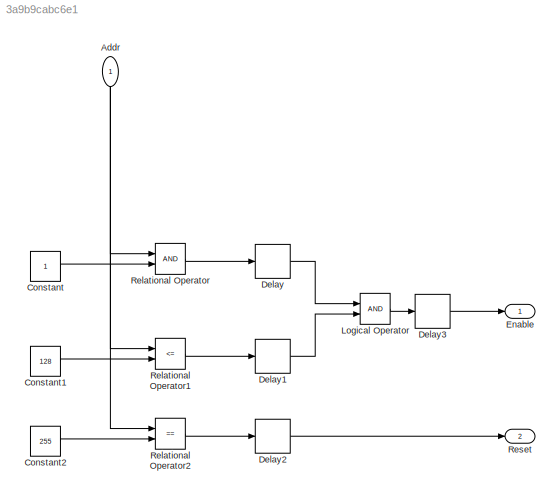
MODEL slx_3a9b9cabc6e1
KIND model
CONFIG AbsTol = auto
CONFIG EnableMultiTasking = off
CONFIG FixedStep = auto
CONFIG MaxStep = auto
CONFIG MinStep = auto
CONFIG RelTol = 1e-3
CONFIG SampleTimeConstraint = Unconstrained
CONFIG Solver = VariableStepAuto
CONFIG SolverName = VariableStepAuto
CONFIG StartTime = 0.0
CONFIG StopTime = 10.0
BLOCK [Inport] Addr
  IconDisplay = Port number
  OutDataTypeStr = fixdt(1,17,0)
  PortDimensions = 1
  SampleTime = 1
  SignalType = real
BLOCK [Constant] Constant
  OutDataTypeStr = fixdt(0,10,0)
BLOCK [Constant] Constant1
  OutDataTypeStr = fixdt(0,10,0)
  Value = 128
BLOCK [Constant] Constant2
  OutDataTypeStr = fixdt(0,10,0)
  Value = 255
BLOCK [Delay] Delay
  DelayLength = 1
  InputPortMap = u0
  Ports = [1, 1]
BLOCK [Delay] Delay1
  DelayLength = 1
  InputPortMap = u0
  Ports = [1, 1]
BLOCK [Delay] Delay2
  DelayLength = 1
  InputPortMap = u0
  Ports = [1, 1]
BLOCK [Delay] Delay3
  DelayLength = 4
  InputPortMap = u0
  Ports = [1, 1]
BLOCK [Outport] Enable
  IconDisplay = Port number
  OutDataTypeStr = boolean
  PortDimensions = 1
  SampleTime = [1,0]
  SignalType = real
BLOCK [Logic] Logical Operator
  AllPortsSameDT = off
  OutDataTypeStr = boolean
  Ports = [2, 1]
BLOCK [RelationalOperator] Relational Operator
  InputSameDT = off
  OutDataTypeStr = boolean
  Ports = [2, 1]
  RndMeth = Simplest
BLOCK [RelationalOperator] Relational Operator1
  InputSameDT = off
  Operator = <=
  OutDataTypeStr = boolean
  Ports = [2, 1]
BLOCK [RelationalOperator] Relational Operator2
  InputSameDT = off
  Operator = ==
  OutDataTypeStr = boolean
  Ports = [2, 1]
  RndMeth = Simplest
BLOCK [Outport] Reset
  IconDisplay = Port number
  OutDataTypeStr = boolean
  Port = 2
  PortDimensions = 1
  SampleTime = [1,0]
  SignalType = real
NET Addr:1 -> Relational Operator1:1, Relational Operator2:1, Relational Operator:1
LINE Constant1:1 -> Relational Operator1:2
LINE Constant2:1 -> Relational Operator2:2
LINE Constant:1 -> Relational Operator:2
LINE Delay1:1 -> Logical Operator:2
LINE Delay2:1 -> Reset:1
LINE Delay3:1 -> Enable:1
LINE Delay:1 -> Logical Operator:1
LINE Logical Operator:1 -> Delay3:1
LINE Relational Operator1:1 -> Delay1:1
LINE Relational Operator2:1 -> Delay2:1
LINE Relational Operator:1 -> Delay:1
note: NET lines group one-source signal fan-out (src -> all destinations, sorted); 1:1 wires keep LINE
